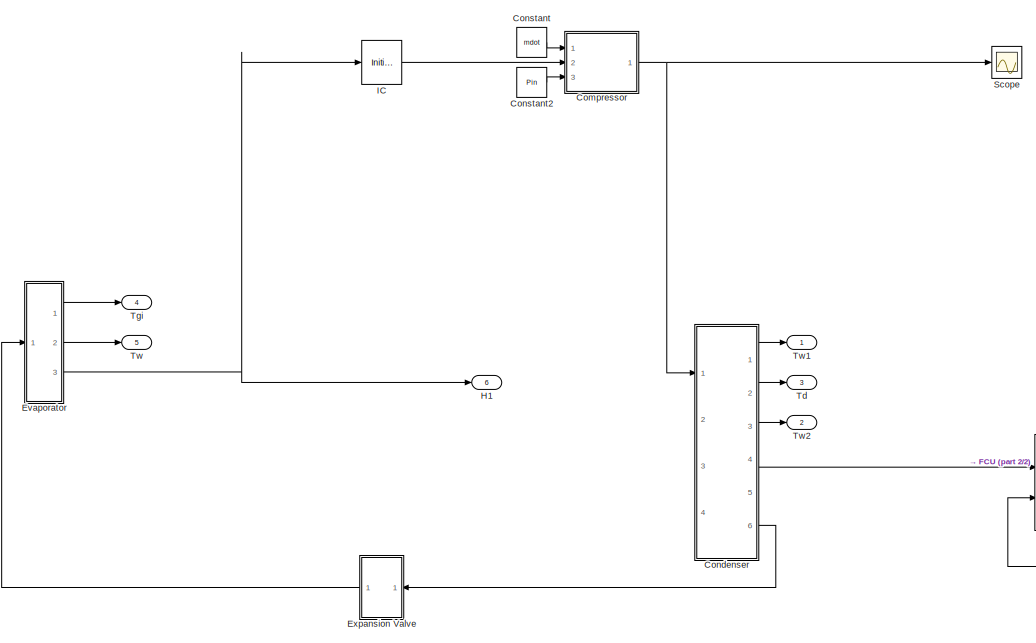
[diagram: root canvas - part 1/2, left side, full height]
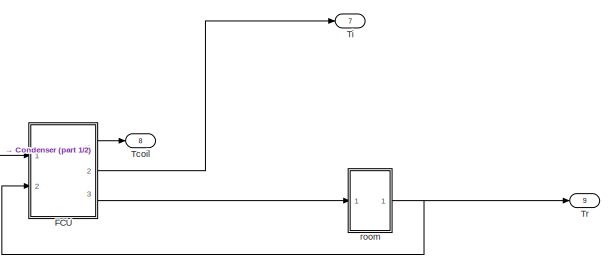
[diagram: root canvas - part 2/2, bottom right region]
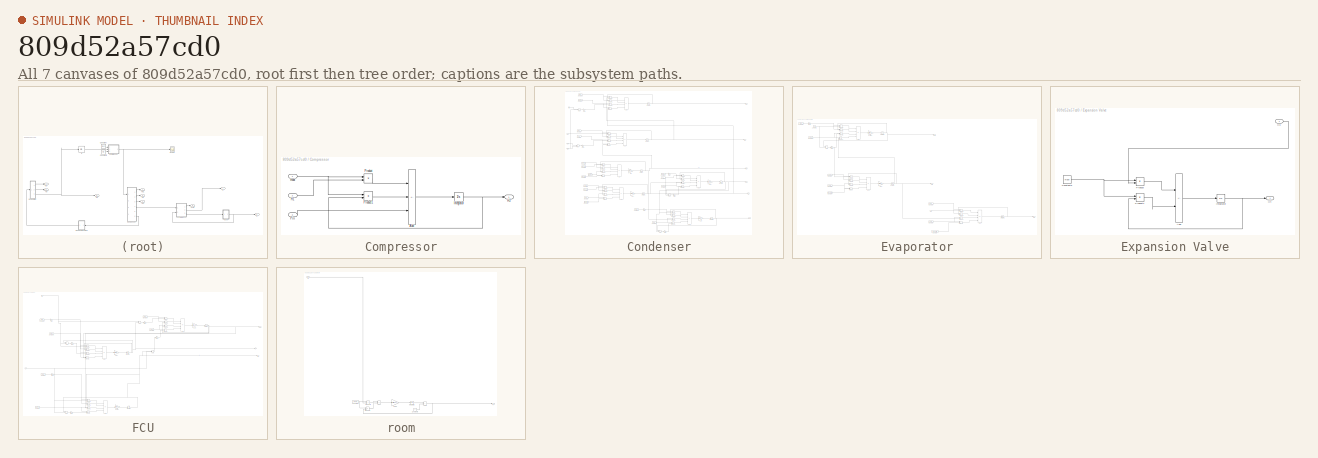
[diagram: thumbnail index - all 7 canvases of the model, root first then tree order]
MODEL slx_809d52a57cd0
KIND model
CONFIG AbsTol = auto
CONFIG EnableMultiTasking = off
CONFIG FixedStep = auto
CONFIG MaxStep = auto
CONFIG MinStep = auto
CONFIG RelTol = 1e-3
CONFIG SampleTimeConstraint = Unconstrained
CONFIG SolverName = VariableStepAuto
CONFIG StartTime = 0.0
CONFIG StopTime = 2000
BLOCK [SubSystem] Compressor
  Ports = [3, 1]
  RequestExecContextInheritance = off
BLOCK [Sum] Compressor/Add
  IconShape = rectangular
  Inputs = +-+
  Ports = [3, 1]
BLOCK [Inport] Compressor/H1
  Port = 2
BLOCK [Outport] Compressor/H2
BLOCK [Integrator] Compressor/Integrator
  Ports = [1, 1]
BLOCK [Inport] Compressor/Pin
  Port = 3
BLOCK [Product] Compressor/Product
  Ports = [2, 1]
BLOCK [Product] Compressor/Product1
  Ports = [2, 1]
BLOCK [Inport] Compressor/mdot
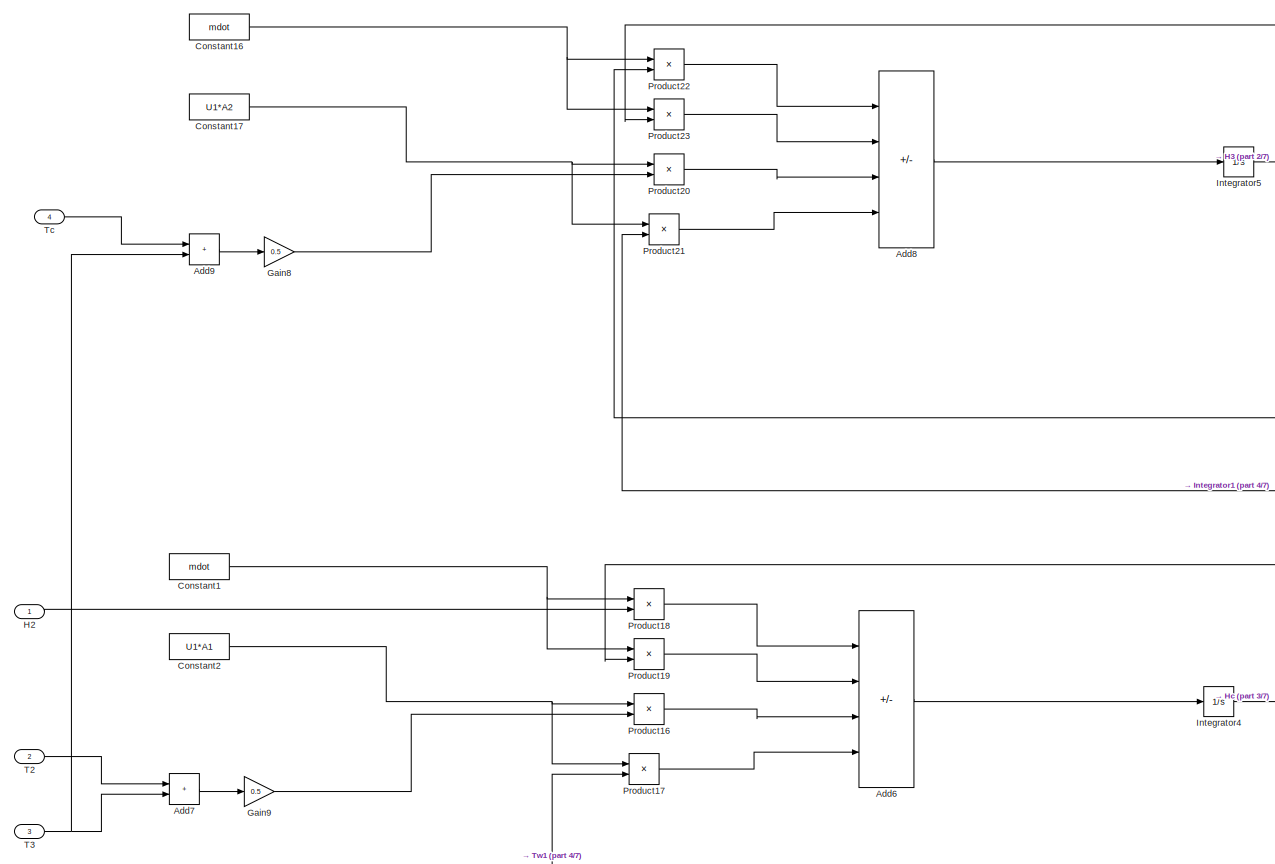
[diagram: Condenser - part 1/7, top left region]
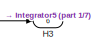
[diagram: Condenser - part 2/7, top right region]
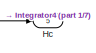
[diagram: Condenser - part 3/7, middle right region]
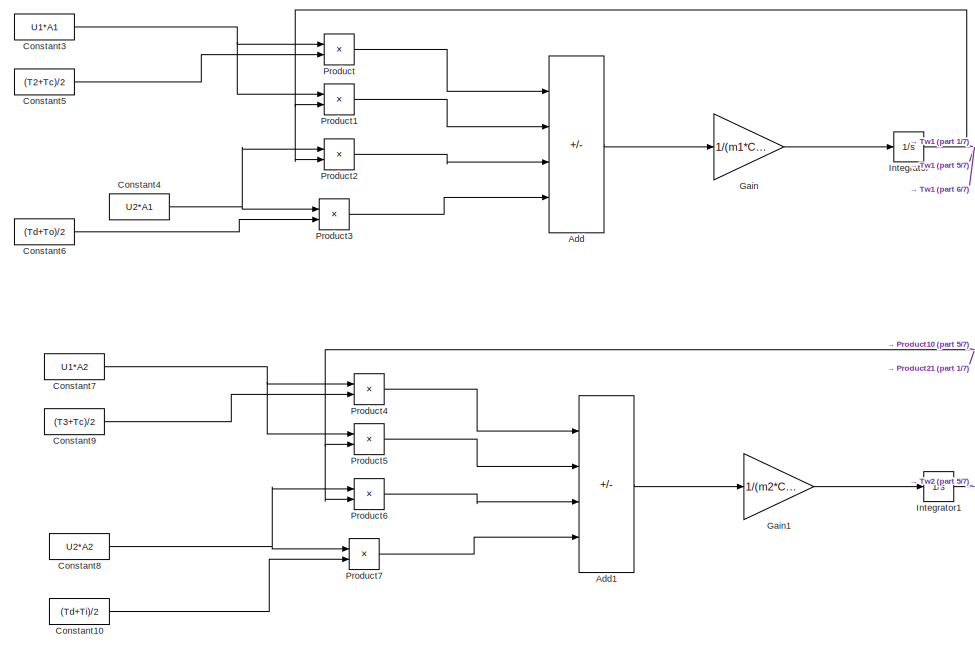
[diagram: Condenser - part 4/7, middle left region]
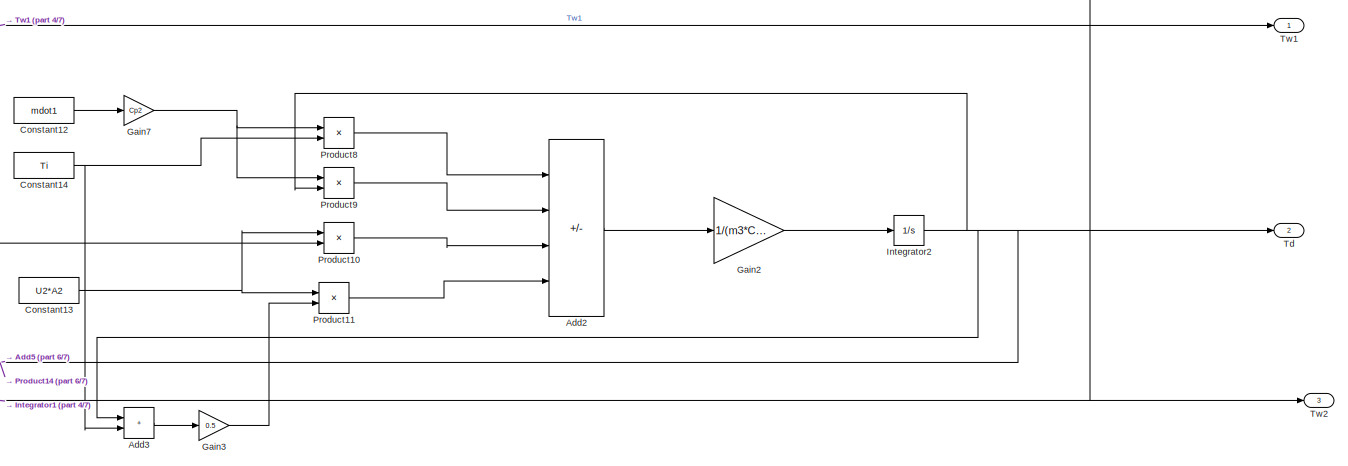
[diagram: Condenser - part 5/7, middle right region]
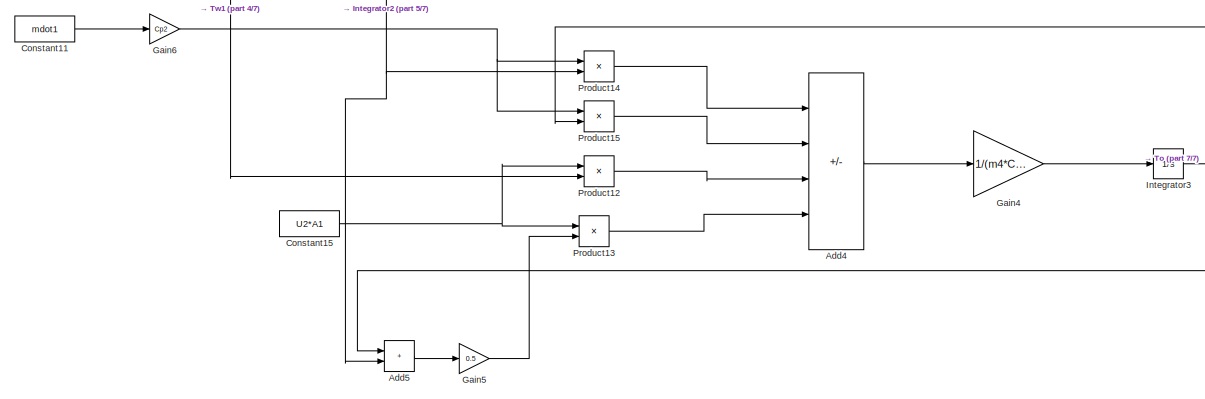
[diagram: Condenser - part 6/7, bottom center region]
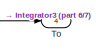
[diagram: Condenser - part 7/7, bottom right region]
BLOCK [SubSystem] Condenser
  Ports = [4, 6]
  RequestExecContextInheritance = off
BLOCK [Sum] Condenser/Add
  IconShape = rectangular
  Inputs = +--+
  Ports = [4, 1]
BLOCK [Sum] Condenser/Add1
  IconShape = rectangular
  Inputs = +--+
  Ports = [4, 1]
BLOCK [Sum] Condenser/Add2
  IconShape = rectangular
  Inputs = +-+-
  Ports = [4, 1]
BLOCK [Sum] Condenser/Add3
  IconShape = rectangular
  Ports = [2, 1]
BLOCK [Sum] Condenser/Add4
  IconShape = rectangular
  Inputs = +-+-
  Ports = [4, 1]
BLOCK [Sum] Condenser/Add5
  IconShape = rectangular
  Ports = [2, 1]
BLOCK [Sum] Condenser/Add6
  IconShape = rectangular
  Inputs = +--+
  Ports = [4, 1]
BLOCK [Sum] Condenser/Add7
  IconShape = rectangular
  Ports = [2, 1]
BLOCK [Sum] Condenser/Add8
  IconShape = rectangular
  Inputs = +--+
  Ports = [4, 1]
BLOCK [Sum] Condenser/Add9
  IconShape = rectangular
  Ports = [2, 1]
BLOCK [Constant] Condenser/Constant1
  Value = mdot
BLOCK [Constant] Condenser/Constant10
  Value = (Td+Ti)/2
BLOCK [Constant] Condenser/Constant11
  Value = mdot1
BLOCK [Constant] Condenser/Constant12
  Value = mdot1
BLOCK [Constant] Condenser/Constant13
  Value = U2*A2
BLOCK [Constant] Condenser/Constant14
  Value = Ti
BLOCK [Constant] Condenser/Constant15
  Value = U2*A1
BLOCK [Constant] Condenser/Constant16
  Value = mdot
BLOCK [Constant] Condenser/Constant17
  Value = U1*A2
BLOCK [Constant] Condenser/Constant2
  Value = U1*A1
BLOCK [Constant] Condenser/Constant3
  Value = U1*A1
BLOCK [Constant] Condenser/Constant4
  Value = U2*A1
BLOCK [Constant] Condenser/Constant5
  Value = (T2+Tc)/2
BLOCK [Constant] Condenser/Constant6
  Value = (Td+To)/2
BLOCK [Constant] Condenser/Constant7
  Value = U1*A2
BLOCK [Constant] Condenser/Constant8
  Value = U2*A2
BLOCK [Constant] Condenser/Constant9
  Value = (T3+Tc)/2
BLOCK [Gain] Condenser/Gain
  Gain = 1/(m1*Cp1)
BLOCK [Gain] Condenser/Gain1
  Gain = 1/(m2*Cp1)
BLOCK [Gain] Condenser/Gain2
  Gain = 1/(m3*Cp2)
BLOCK [Gain] Condenser/Gain3
  Gain = 0.5
BLOCK [Gain] Condenser/Gain4
  Gain = 1/(m4*Cp2)
BLOCK [Gain] Condenser/Gain5
  Gain = 0.5
BLOCK [Gain] Condenser/Gain6
  Gain = Cp2
BLOCK [Gain] Condenser/Gain7
  Gain = Cp2
BLOCK [Gain] Condenser/Gain8
  Gain = 0.5
BLOCK [Gain] Condenser/Gain9
  Gain = 0.5
BLOCK [Inport] Condenser/H2
BLOCK [Outport] Condenser/H3
  Port = 6
BLOCK [Outport] Condenser/Hc
  Port = 5
BLOCK [Integrator] Condenser/Integrator
  Ports = [1, 1]
BLOCK [Integrator] Condenser/Integrator1
  Ports = [1, 1]
BLOCK [Integrator] Condenser/Integrator2
  Ports = [1, 1]
BLOCK [Integrator] Condenser/Integrator3
  Ports = [1, 1]
BLOCK [Integrator] Condenser/Integrator4
  Ports = [1, 1]
BLOCK [Integrator] Condenser/Integrator5
  Ports = [1, 1]
BLOCK [Product] Condenser/Product
  Ports = [2, 1]
BLOCK [Product] Condenser/Product1
  Ports = [2, 1]
BLOCK [Product] Condenser/Product10
  Ports = [2, 1]
BLOCK [Product] Condenser/Product11
  Ports = [2, 1]
BLOCK [Product] Condenser/Product12
  Ports = [2, 1]
BLOCK [Product] Condenser/Product13
  Ports = [2, 1]
BLOCK [Product] Condenser/Product14
  Ports = [2, 1]
BLOCK [Product] Condenser/Product15
  Ports = [2, 1]
BLOCK [Product] Condenser/Product16
  Ports = [2, 1]
BLOCK [Product] Condenser/Product17
  Ports = [2, 1]
BLOCK [Product] Condenser/Product18
  Ports = [2, 1]
BLOCK [Product] Condenser/Product19
  Ports = [2, 1]
BLOCK [Product] Condenser/Product2
  Ports = [2, 1]
BLOCK [Product] Condenser/Product20
  Ports = [2, 1]
BLOCK [Product] Condenser/Product21
  Ports = [2, 1]
BLOCK [Product] Condenser/Product22
  Ports = [2, 1]
BLOCK [Product] Condenser/Product23
  Ports = [2, 1]
BLOCK [Product] Condenser/Product3
  Ports = [2, 1]
BLOCK [Product] Condenser/Product4
  Ports = [2, 1]
BLOCK [Product] Condenser/Product5
  Ports = [2, 1]
BLOCK [Product] Condenser/Product6
  Ports = [2, 1]
BLOCK [Product] Condenser/Product7
  Ports = [2, 1]
BLOCK [Product] Condenser/Product8
  Ports = [2, 1]
BLOCK [Product] Condenser/Product9
  Ports = [2, 1]
BLOCK [Inport] Condenser/T2
  Port = 2
BLOCK [Inport] Condenser/T3
  Port = 3
BLOCK [Inport] Condenser/Tc
  Port = 4
BLOCK [Outport] Condenser/Td
  Port = 2
BLOCK [Outport] Condenser/To
  Port = 4
BLOCK [Outport] Condenser/Tw1
BLOCK [Outport] Condenser/Tw2
  Port = 3
BLOCK [Constant] Constant
  Value = mdot
BLOCK [Constant] Constant2
  Value = Pin
BLOCK [SubSystem] Evaporator
  Ports = [1, 3]
  RequestExecContextInheritance = off
BLOCK [Sum] Evaporator/Add1
  IconShape = rectangular
  Inputs = +--+
  Ports = [4, 1]
BLOCK [Sum] Evaporator/Add2
  IconShape = rectangular
  Inputs = +--+
  Ports = [4, 1]
BLOCK [Sum] Evaporator/Add4
  IconShape = rectangular
  Inputs = +--+
  Ports = [4, 1]
BLOCK [Sum] Evaporator/Add5
  IconShape = rectangular
  Ports = [2, 1]
BLOCK [Constant] Evaporator/Constant11
  Value = mdot2
BLOCK [Constant] Evaporator/Constant15
  Value = U3*A3
BLOCK [Constant] Evaporator/Constant3
  Value = Tgo
BLOCK [Constant] Evaporator/Constant4
  Value = (T4+T1)/2
BLOCK [Constant] Evaporator/Constant5
  Value = mdot
BLOCK [Constant] Evaporator/Constant6
  Value = U4*A3
BLOCK [Constant] Evaporator/Constant7
  Value = U3*A3
BLOCK [Constant] Evaporator/Constant8
  Value = U4*A3
BLOCK [Constant] Evaporator/Constant9
  Value = (T4+T1)/2
BLOCK [Gain] Evaporator/Gain1
  Gain = 1/(m6*Cp4)
BLOCK [Gain] Evaporator/Gain4
  Gain = 1/(m5*Cp3)
BLOCK [Gain] Evaporator/Gain5
  Gain = 0.5
BLOCK [Gain] Evaporator/Gain6
  Gain = Cp3
BLOCK [Inport] Evaporator/H4
BLOCK [Integrator] Evaporator/Integrator1
  Ports = [1, 1]
BLOCK [Integrator] Evaporator/Integrator2
  Ports = [1, 1]
BLOCK [Integrator] Evaporator/Integrator3
  Ports = [1, 1]
BLOCK [Outport] Evaporator/Out1
BLOCK [Outport] Evaporator/Out2
  Port = 2
BLOCK [Outport] Evaporator/Out3
  Port = 3
BLOCK [Product] Evaporator/Product1
  Ports = [2, 1]
BLOCK [Product] Evaporator/Product12
  Ports = [2, 1]
BLOCK [Product] Evaporator/Product13
  Ports = [2, 1]
BLOCK [Product] Evaporator/Product14
  Ports = [2, 1]
BLOCK [Product] Evaporator/Product15
  Ports = [2, 1]
BLOCK [Product] Evaporator/Product2
  Ports = [2, 1]
BLOCK [Product] Evaporator/Product3
  Ports = [2, 1]
BLOCK [Product] Evaporator/Product4
  Ports = [2, 1]
BLOCK [Product] Evaporator/Product5
  Ports = [2, 1]
BLOCK [Product] Evaporator/Product6
  Ports = [2, 1]
BLOCK [Product] Evaporator/Product7
  Ports = [2, 1]
BLOCK [Product] Evaporator/Product8
  Ports = [2, 1]
BLOCK [SubSystem] Expansion Valve
  NameLocation = top
  Ports = [1, 1]
  RequestExecContextInheritance = off
BLOCK [Sum] Expansion Valve/Add
  IconShape = rectangular
  Inputs = +-
  Ports = [2, 1]
BLOCK [Constant] Expansion Valve/Constant3
  Value = mdot
BLOCK [Inport] Expansion Valve/H3
BLOCK [Outport] Expansion Valve/H4
BLOCK [Integrator] Expansion Valve/Integrator
  Ports = [1, 1]
BLOCK [Product] Expansion Valve/Product
  Ports = [2, 1]
BLOCK [Product] Expansion Valve/Product1
  Ports = [2, 1]
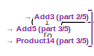
[diagram: FCU - part 1/5, top left region]
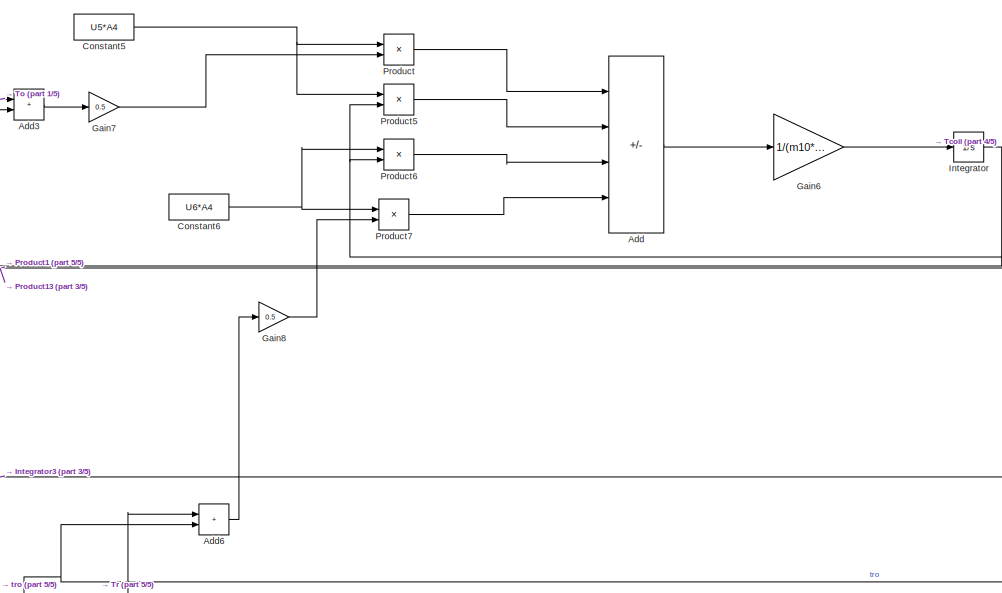
[diagram: FCU - part 2/5, central region]
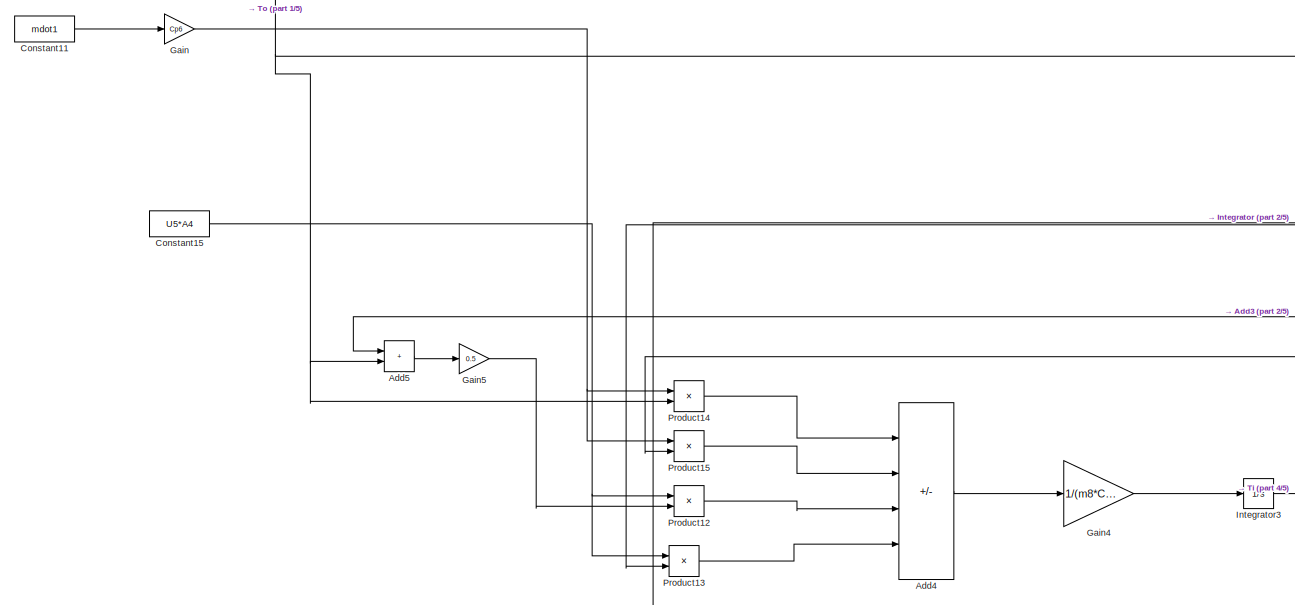
[diagram: FCU - part 3/5, middle left region]
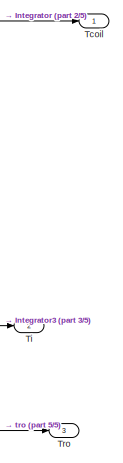
[diagram: FCU - part 4/5, middle right region]
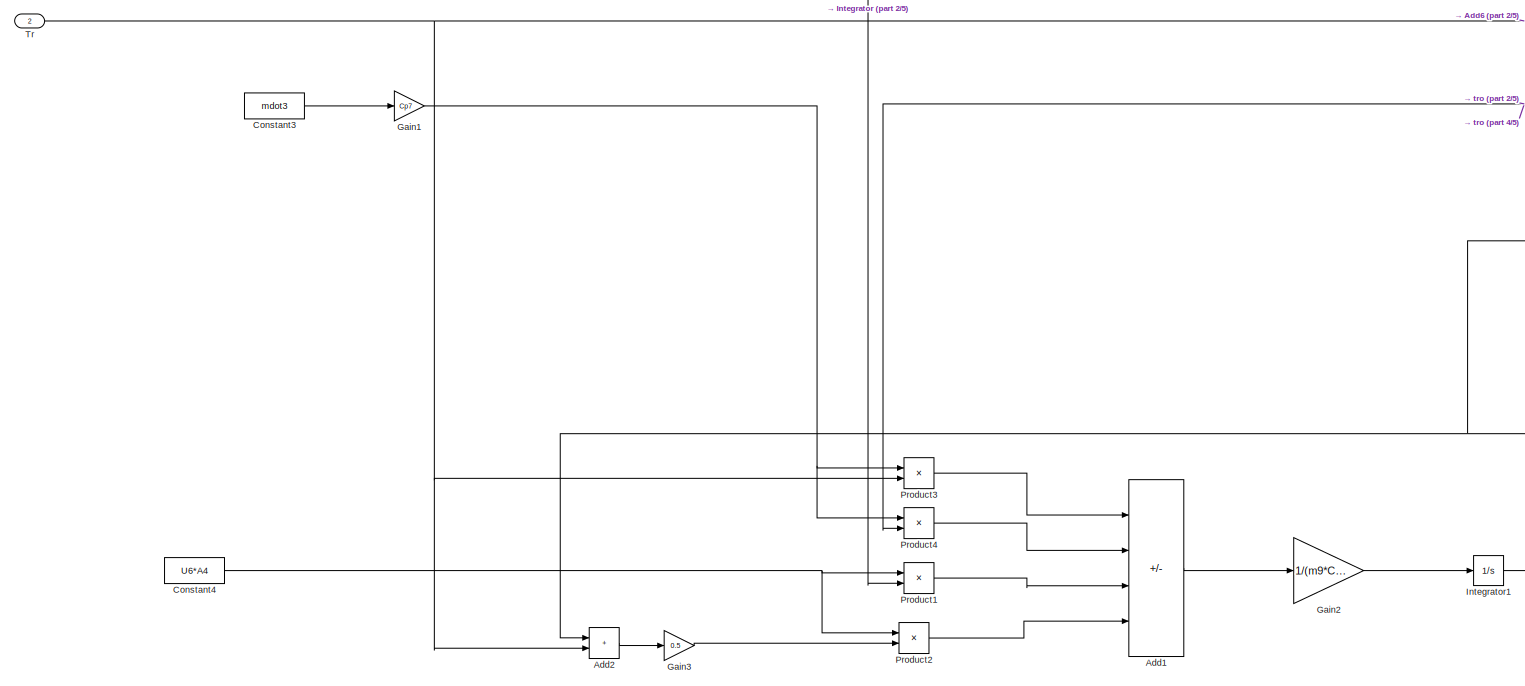
[diagram: FCU - part 5/5, bottom left region]
BLOCK [SubSystem] FCU
  Ports = [2, 3]
  RequestExecContextInheritance = off
BLOCK [Sum] FCU/Add
  IconShape = rectangular
  Inputs = +--+
  Ports = [4, 1]
BLOCK [Sum] FCU/Add1
  IconShape = rectangular
  Inputs = +-+-
  Ports = [4, 1]
BLOCK [Sum] FCU/Add2
  IconShape = rectangular
  Ports = [2, 1]
BLOCK [Sum] FCU/Add3
  IconShape = rectangular
  Ports = [2, 1]
BLOCK [Sum] FCU/Add4
  IconShape = rectangular
  Inputs = +--+
  Ports = [4, 1]
BLOCK [Sum] FCU/Add5
  IconShape = rectangular
  Ports = [2, 1]
BLOCK [Sum] FCU/Add6
  IconShape = rectangular
  Ports = [2, 1]
BLOCK [Constant] FCU/Constant11
  Value = mdot1
BLOCK [Constant] FCU/Constant15
  Value = U5*A4
BLOCK [Constant] FCU/Constant3
  Value = mdot3
BLOCK [Constant] FCU/Constant4
  Value = U6*A4
BLOCK [Constant] FCU/Constant5
  Value = U5*A4
BLOCK [Constant] FCU/Constant6
  Value = U6*A4
BLOCK [Gain] FCU/Gain
  Gain = Cp6
BLOCK [Gain] FCU/Gain1
  Gain = Cp7
BLOCK [Gain] FCU/Gain2
  Gain = 1/(m9*Cp7)
BLOCK [Gain] FCU/Gain3
  Gain = 0.5
BLOCK [Gain] FCU/Gain4
  Gain = 1/(m8*Cp6)
BLOCK [Gain] FCU/Gain5
  Gain = 0.5
BLOCK [Gain] FCU/Gain6
  Gain = 1/(m10*Cp8)
BLOCK [Gain] FCU/Gain7
  Gain = 0.5
BLOCK [Gain] FCU/Gain8
  Gain = 0.5
BLOCK [Integrator] FCU/Integrator
  Ports = [1, 1]
BLOCK [Integrator] FCU/Integrator1
  Ports = [1, 1]
BLOCK [Integrator] FCU/Integrator3
  Ports = [1, 1]
BLOCK [Product] FCU/Product
  Ports = [2, 1]
BLOCK [Product] FCU/Product1
  Ports = [2, 1]
BLOCK [Product] FCU/Product12
  Ports = [2, 1]
BLOCK [Product] FCU/Product13
  Ports = [2, 1]
BLOCK [Product] FCU/Product14
  Ports = [2, 1]
BLOCK [Product] FCU/Product15
  Ports = [2, 1]
BLOCK [Product] FCU/Product2
  Ports = [2, 1]
BLOCK [Product] FCU/Product3
  Ports = [2, 1]
BLOCK [Product] FCU/Product4
  Ports = [2, 1]
BLOCK [Product] FCU/Product5
  Ports = [2, 1]
BLOCK [Product] FCU/Product6
  Ports = [2, 1]
BLOCK [Product] FCU/Product7
  Ports = [2, 1]
BLOCK [Outport] FCU/Tcoil
BLOCK [Outport] FCU/Ti
  Port = 2
BLOCK [Inport] FCU/To
BLOCK [Inport] FCU/Tr
  Port = 2
BLOCK [Outport] FCU/Tro
  Port = 3
BLOCK [Outport] H1
  Port = 6
BLOCK [InitialCondition] IC
BLOCK [Scope] Scope
  Floating = off
  NumInputPorts = 1
  Ports = [1]
  ScopeSpecificationString = Simulink.scopes.TimeScopeBlockCfg('CurrentConfiguration', extmgr.ConfigurationSet(extmgr.Configuration('Core','General UI',true),extmgr.Configuration('Core','Source UI',true),extmgr.Configuration('Sources','WiredSimulink',true),extmgr.Configuration('Visuals','Time Domain',true,'SerializedDisplays',{struct('MinYLimReal','-57.79114','MaxYLimReal','520.12025','YLabelReal','','MinYLimMag','0.00000','M...<+1671ch>
BLOCK [Outport] Tcoil
  Port = 8
BLOCK [Outport] Td
  Port = 3
BLOCK [Outport] Tgi
  Port = 4
BLOCK [Outport] Ti
  Port = 7
BLOCK [Outport] Tr
  Port = 9
BLOCK [Outport] Tw
  Port = 5
BLOCK [Outport] Tw1
BLOCK [Outport] Tw2
  Port = 2
BLOCK [SubSystem] room
  Ports = [1, 1]
  RequestExecContextInheritance = off
BLOCK [Sum] room/Add7
  IconShape = rectangular
  Inputs = +-
  Ports = [2, 1]
BLOCK [Sum] room/Add8
  IconShape = rectangular
  Ports = [2, 1]
BLOCK [Constant] room/Constant7
  Value = U7*A5
BLOCK [Constant] room/Constant8
BLOCK [Gain] room/Gain9
  Gain = 1/(m11*Cp7)
BLOCK [Integrator] room/Integrator2
  Ports = [1, 1]
BLOCK [Product] room/Product8
  Ports = [2, 1]
BLOCK [Product] room/Product9
  Ports = [2, 1]
BLOCK [Outport] room/Tr
BLOCK [Inport] room/Tro
LINE Compressor/Add:1 -> Compressor/Integrator:1
LINE Compressor/H1:1 -> Compressor/Product:2
NET Compressor/Integrator:1 -> Compressor/H2:1, Compressor/Product1:2
LINE Compressor/Pin:1 -> Compressor/Add:3
LINE Compressor/Product1:1 -> Compressor/Add:2
LINE Compressor/Product:1 -> Compressor/Add:1
NET Compressor/mdot:1 -> Compressor/Product1:1, Compressor/Product:1
NET Compressor:1 -> Condenser:1, Scope:1
LINE Condenser/Add1:1 -> Condenser/Gain1:1
LINE Condenser/Add2:1 -> Condenser/Gain2:1
LINE Condenser/Add3:1 -> Condenser/Gain3:1
LINE Condenser/Add4:1 -> Condenser/Gain4:1
LINE Condenser/Add5:1 -> Condenser/Gain5:1
LINE Condenser/Add6:1 -> Condenser/Integrator4:1
LINE Condenser/Add7:1 -> Condenser/Gain9:1
LINE Condenser/Add8:1 -> Condenser/Integrator5:1
LINE Condenser/Add9:1 -> Condenser/Gain8:1
LINE Condenser/Add:1 -> Condenser/Gain:1
LINE Condenser/Constant10:1 -> Condenser/Product7:2
LINE Condenser/Constant11:1 -> Condenser/Gain6:1
LINE Condenser/Constant12:1 -> Condenser/Gain7:1
NET Condenser/Constant13:1 -> Condenser/Product10:1, Condenser/Product11:1
NET Condenser/Constant14:1 -> Condenser/Add3:2, Condenser/Product8:2
NET Condenser/Constant15:1 -> Condenser/Product12:1, Condenser/Product13:1
NET Condenser/Constant16:1 -> Condenser/Product22:1, Condenser/Product23:1
NET Condenser/Constant17:1 -> Condenser/Product20:1, Condenser/Product21:1
NET Condenser/Constant1:1 -> Condenser/Product18:1, Condenser/Product19:1
NET Condenser/Constant2:1 -> Condenser/Product16:1, Condenser/Product17:1
NET Condenser/Constant3:1 -> Condenser/Product1:1, Condenser/Product:1
NET Condenser/Constant4:1 -> Condenser/Product2:1, Condenser/Product3:1
LINE Condenser/Constant5:1 -> Condenser/Product:2
LINE Condenser/Constant6:1 -> Condenser/Product3:2
NET Condenser/Constant7:1 -> Condenser/Product4:1, Condenser/Product5:1
NET Condenser/Constant8:1 -> Condenser/Product6:1, Condenser/Product7:1
LINE Condenser/Constant9:1 -> Condenser/Product4:2
LINE Condenser/Gain1:1 -> Condenser/Integrator1:1
LINE Condenser/Gain2:1 -> Condenser/Integrator2:1
LINE Condenser/Gain3:1 -> Condenser/Product11:2
LINE Condenser/Gain4:1 -> Condenser/Integrator3:1
LINE Condenser/Gain5:1 -> Condenser/Product13:2
NET Condenser/Gain6:1 -> Condenser/Product14:1, Condenser/Product15:1
NET Condenser/Gain7:1 -> Condenser/Product8:1, Condenser/Product9:1
LINE Condenser/Gain8:1 -> Condenser/Product20:2
LINE Condenser/Gain9:1 -> Condenser/Product16:2
LINE Condenser/Gain:1 -> Condenser/Integrator:1
LINE Condenser/H2:1 -> Condenser/Product18:2
NET Condenser/Integrator1:1 -> Condenser/Product10:2, Condenser/Product21:2, Condenser/Product5:2, Condenser/Product6:2, Condenser/Tw2:1
NET Condenser/Integrator2:1 -> Condenser/Add3:1, Condenser/Add5:2, Condenser/Product14:2, Condenser/Product9:2, Condenser/Td:1
NET Condenser/Integrator3:1 -> Condenser/Add5:1, Condenser/Product15:2, Condenser/To:1
NET Condenser/Integrator4:1 -> Condenser/Hc:1, Condenser/Product19:2, Condenser/Product22:2
NET Condenser/Integrator5:1 -> Condenser/H3:1, Condenser/Product23:2
NET Condenser/Integrator:1 -> Condenser/Product12:2, Condenser/Product17:2, Condenser/Product1:2, Condenser/Product2:2, Condenser/Tw1:1
LINE Condenser/Product10:1 -> Condenser/Add2:3
LINE Condenser/Product11:1 -> Condenser/Add2:4
LINE Condenser/Product12:1 -> Condenser/Add4:3
LINE Condenser/Product13:1 -> Condenser/Add4:4
LINE Condenser/Product14:1 -> Condenser/Add4:1
LINE Condenser/Product15:1 -> Condenser/Add4:2
LINE Condenser/Product16:1 -> Condenser/Add6:3
LINE Condenser/Product17:1 -> Condenser/Add6:4
LINE Condenser/Product18:1 -> Condenser/Add6:1
LINE Condenser/Product19:1 -> Condenser/Add6:2
LINE Condenser/Product1:1 -> Condenser/Add:2
LINE Condenser/Product20:1 -> Condenser/Add8:3
LINE Condenser/Product21:1 -> Condenser/Add8:4
LINE Condenser/Product22:1 -> Condenser/Add8:1
LINE Condenser/Product23:1 -> Condenser/Add8:2
LINE Condenser/Product2:1 -> Condenser/Add:3
LINE Condenser/Product3:1 -> Condenser/Add:4
LINE Condenser/Product4:1 -> Condenser/Add1:1
LINE Condenser/Product5:1 -> Condenser/Add1:2
LINE Condenser/Product6:1 -> Condenser/Add1:3
LINE Condenser/Product7:1 -> Condenser/Add1:4
LINE Condenser/Product8:1 -> Condenser/Add2:1
LINE Condenser/Product9:1 -> Condenser/Add2:2
LINE Condenser/Product:1 -> Condenser/Add:1
LINE Condenser/T2:1 -> Condenser/Add7:1
NET Condenser/T3:1 -> Condenser/Add7:2, Condenser/Add9:2
LINE Condenser/Tc:1 -> Condenser/Add9:1
LINE Condenser:1 -> Tw1:1
LINE Condenser:2 -> Td:1
LINE Condenser:3 -> Tw2:1
LINE Condenser:4 -> FCU:1
LINE Condenser:6 -> Expansion Valve:1
LINE Constant2:1 -> Compressor:3
LINE Constant:1 -> Compressor:1
LINE Evaporator/Add1:1 -> Evaporator/Gain1:1
LINE Evaporator/Add2:1 -> Evaporator/Integrator2:1
LINE Evaporator/Add4:1 -> Evaporator/Gain4:1
LINE Evaporator/Add5:1 -> Evaporator/Gain5:1
LINE Evaporator/Constant11:1 -> Evaporator/Gain6:1
NET Evaporator/Constant15:1 -> Evaporator/Product12:1, Evaporator/Product13:1
NET Evaporator/Constant3:1 -> Evaporator/Add5:2, Evaporator/Product14:2
LINE Evaporator/Constant4:1 -> Evaporator/Product7:2
NET Evaporator/Constant5:1 -> Evaporator/Product3:1, Evaporator/Product8:1
NET Evaporator/Constant6:1 -> Evaporator/Product1:1, Evaporator/Product2:1
NET Evaporator/Constant7:1 -> Evaporator/Product4:1, Evaporator/Product5:1
NET Evaporator/Constant8:1 -> Evaporator/Product6:1, Evaporator/Product7:1
LINE Evaporator/Constant9:1 -> Evaporator/Product2:2
LINE Evaporator/Gain1:1 -> Evaporator/Integrator1:1
LINE Evaporator/Gain4:1 -> Evaporator/Integrator3:1
NET Evaporator/Gain5:1 -> Evaporator/Product12:2, Evaporator/Product4:2
NET Evaporator/Gain6:1 -> Evaporator/Product14:1, Evaporator/Product15:1
LINE Evaporator/H4:1 -> Evaporator/Product3:2
NET Evaporator/Integrator1:1 -> Evaporator/Out2:1, Evaporator/Product13:2, Evaporator/Product1:2, Evaporator/Product5:2, Evaporator/Product6:2
NET Evaporator/Integrator2:1 -> Evaporator/Out3:1, Evaporator/Product8:2
NET Evaporator/Integrator3:1 -> Evaporator/Add5:1, Evaporator/Out1:1, Evaporator/Product15:2
LINE Evaporator/Product12:1 -> Evaporator/Add4:3
LINE Evaporator/Product13:1 -> Evaporator/Add4:4
LINE Evaporator/Product14:1 -> Evaporator/Add4:1
LINE Evaporator/Product15:1 -> Evaporator/Add4:2
LINE Evaporator/Product1:1 -> Evaporator/Add2:3
LINE Evaporator/Product2:1 -> Evaporator/Add2:4
LINE Evaporator/Product3:1 -> Evaporator/Add2:1
LINE Evaporator/Product4:1 -> Evaporator/Add1:1
LINE Evaporator/Product5:1 -> Evaporator/Add1:2
LINE Evaporator/Product6:1 -> Evaporator/Add1:3
LINE Evaporator/Product7:1 -> Evaporator/Add1:4
LINE Evaporator/Product8:1 -> Evaporator/Add2:2
LINE Evaporator:1 -> Tgi:1
LINE Evaporator:2 -> Tw:1
NET Evaporator:3 -> H1:1, IC:1
LINE Expansion Valve/Add:1 -> Expansion Valve/Integrator:1
NET Expansion Valve/Constant3:1 -> Expansion Valve/Product1:1, Expansion Valve/Product:1
LINE Expansion Valve/H3:1 -> Expansion Valve/Product:2
NET Expansion Valve/Integrator:1 -> Expansion Valve/H4:1, Expansion Valve/Product1:2
LINE Expansion Valve/Product1:1 -> Expansion Valve/Add:2
LINE Expansion Valve/Product:1 -> Expansion Valve/Add:1
LINE Expansion Valve:1 -> Evaporator:1
LINE FCU/Add1:1 -> FCU/Gain2:1
LINE FCU/Add2:1 -> FCU/Gain3:1
LINE FCU/Add3:1 -> FCU/Gain7:1
LINE FCU/Add4:1 -> FCU/Gain4:1
LINE FCU/Add5:1 -> FCU/Gain5:1
LINE FCU/Add6:1 -> FCU/Gain8:1
LINE FCU/Add:1 -> FCU/Gain6:1
LINE FCU/Constant11:1 -> FCU/Gain:1
NET FCU/Constant15:1 -> FCU/Product12:1, FCU/Product13:1
LINE FCU/Constant3:1 -> FCU/Gain1:1
NET FCU/Constant4:1 -> FCU/Product1:1, FCU/Product2:1
NET FCU/Constant5:1 -> FCU/Product5:1, FCU/Product:1
NET FCU/Constant6:1 -> FCU/Product6:1, FCU/Product7:1
NET FCU/Gain1:1 -> FCU/Product3:1, FCU/Product4:1
LINE FCU/Gain2:1 -> FCU/Integrator1:1
LINE FCU/Gain3:1 -> FCU/Product2:2
LINE FCU/Gain4:1 -> FCU/Integrator3:1
LINE FCU/Gain5:1 -> FCU/Product12:2
LINE FCU/Gain6:1 -> FCU/Integrator:1
LINE FCU/Gain7:1 -> FCU/Product:2
LINE FCU/Gain8:1 -> FCU/Product7:2
NET FCU/Gain:1 -> FCU/Product14:1, FCU/Product15:1
NET FCU/Integrator1:1 -> FCU/Add2:1, FCU/Add6:2, FCU/Product4:2, FCU/Tro:1
NET FCU/Integrator3:1 -> FCU/Add3:2, FCU/Add5:1, FCU/Product15:2, FCU/Ti:1
NET FCU/Integrator:1 -> FCU/Product13:2, FCU/Product1:2, FCU/Product5:2, FCU/Product6:2, FCU/Tcoil:1
LINE FCU/Product12:1 -> FCU/Add4:3
LINE FCU/Product13:1 -> FCU/Add4:4
LINE FCU/Product14:1 -> FCU/Add4:1
LINE FCU/Product15:1 -> FCU/Add4:2
LINE FCU/Product1:1 -> FCU/Add1:3
LINE FCU/Product2:1 -> FCU/Add1:4
LINE FCU/Product3:1 -> FCU/Add1:1
LINE FCU/Product4:1 -> FCU/Add1:2
LINE FCU/Product5:1 -> FCU/Add:2
LINE FCU/Product6:1 -> FCU/Add:3
LINE FCU/Product7:1 -> FCU/Add:4
LINE FCU/Product:1 -> FCU/Add:1
NET FCU/To:1 -> FCU/Add3:1, FCU/Add5:2, FCU/Product14:2
NET FCU/Tr:1 -> FCU/Add2:2, FCU/Add6:1, FCU/Product3:2
LINE FCU:1 -> Tcoil:1
LINE FCU:2 -> Ti:1
LINE FCU:3 -> room:1
LINE IC:1 -> Compressor:2
LINE room/Add7:1 -> room/Gain9:1
NET room/Add8:1 -> room/Product9:2, room/Tr:1
NET room/Constant7:1 -> room/Product8:1, room/Product9:1
LINE room/Constant8:1 -> room/Add8:2
LINE room/Gain9:1 -> room/Integrator2:1
LINE room/Integrator2:1 -> room/Add8:1
LINE room/Product8:1 -> room/Add7:1
LINE room/Product9:1 -> room/Add7:2
LINE room/Tro:1 -> room/Product8:2
NET room:1 -> FCU:2, Tr:1
note: NET lines group one-source signal fan-out (src -> all destinations, sorted); 1:1 wires keep LINE
